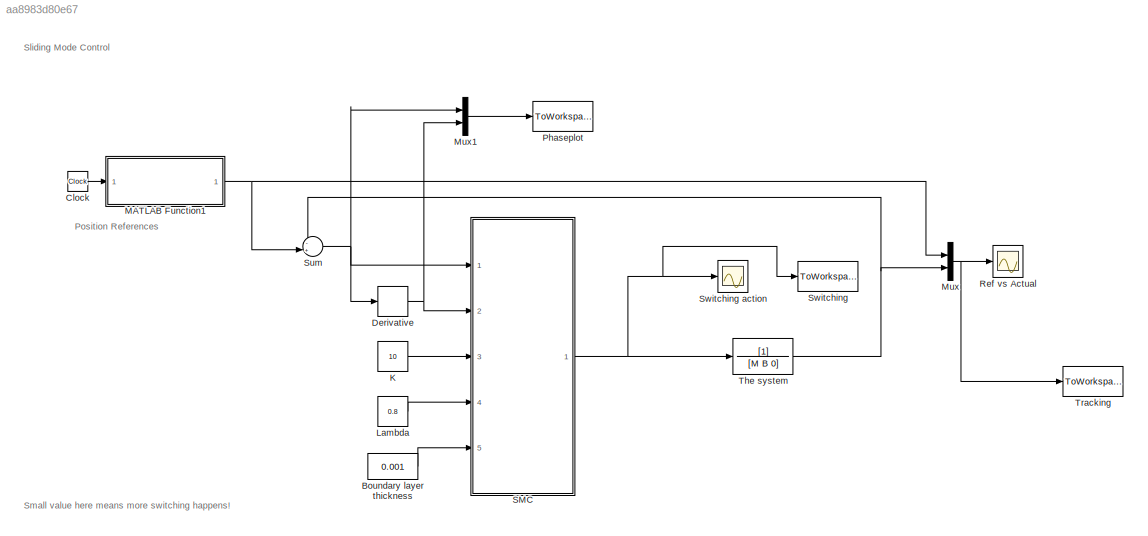
MODEL slx_aa8983d80e67
KIND model
CONFIG AbsTol = auto
CONFIG FixedStep = ts
CONFIG MaxStep = auto
CONFIG MinStep = auto
CONFIG RelTol = 1e-3
CONFIG SampleTimeConstraint = Unconstrained
CONFIG Solver = ode3
CONFIG SolverMode = Auto
CONFIG SolverName = ode3
CONFIG StartTime = 0.0
CONFIG StopTime = tsim
BLOCK [Constant] Boundary layer thickness
  Value = 0.001
BLOCK [Clock] Clock
BLOCK [Derivative] Derivative
BLOCK [Constant] K
  Value = 10
BLOCK [Constant] Lambda
  Value = 0.8
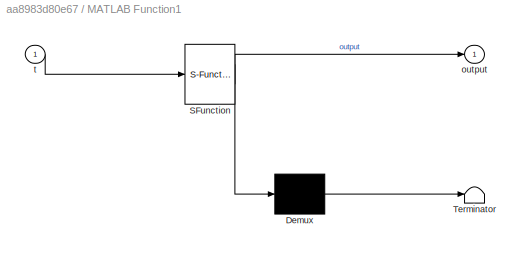
BLOCK [SubSystem] MATLAB Function1
  ErrorFcn = Stateflow.Translate.translate
  PermitHierarchicalResolution = ExplicitOnly
  Ports = [1, 1]
  RequestExecContextInheritance = off
  SFBlockType = MATLAB Function
  TreatAsAtomicUnit = on
BLOCK [Demux] MATLAB Function1/ Demux 
  Outputs = 1
  Ports = [1, 1]
BLOCK [S-Function] MATLAB Function1/ SFunction 
  EnableBusSupport = on
  FunctionName = sf_sfun
  PortCounts = [1 2]
  Ports = [1, 2]
  Tag = Stateflow S-Function smc_mass_1d 4
BLOCK [Terminator] MATLAB Function1/ Terminator 
BLOCK [Outport] MATLAB Function1/output
  IconDisplay = Port number
BLOCK [Inport] MATLAB Function1/t
  IconDisplay = Port number
BLOCK [Mux] Mux
  DisplayOption = bar
  Inputs = 2
  Ports = [2, 1]
BLOCK [Mux] Mux1
  DisplayOption = bar
  Inputs = 2
  Ports = [2, 1]
BLOCK [ToWorkspace] Phaseplot
  FixptAsFi = on
  MaxDataPoints = inf
  Ports = [1]
  SampleTime = -1
  Save2DSignal = 3-D array (concatenate along third dimension)
  VariableName = phaseplot
BLOCK [Scope] Ref vs Actual
  Floating = off
  LimitDataPoints = off
  NumInputPorts = 1
  Ports = [1]
  ShowLegends = off
  ZoomMode = yonly
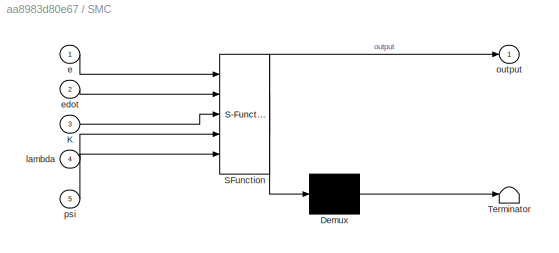
BLOCK [SubSystem] SMC
  ErrorFcn = Stateflow.Translate.translate
  PermitHierarchicalResolution = ExplicitOnly
  Ports = [5, 1]
  RequestExecContextInheritance = off
  SFBlockType = MATLAB Function
  TreatAsAtomicUnit = on
BLOCK [Demux] SMC/ Demux 
  Outputs = 1
  Ports = [1, 1]
BLOCK [S-Function] SMC/ SFunction 
  EnableBusSupport = on
  FunctionName = sf_sfun
  PortCounts = [5 2]
  Ports = [5, 2]
  Tag = Stateflow S-Function smc_mass_1d 2
BLOCK [Terminator] SMC/ Terminator 
BLOCK [Inport] SMC/K
  IconDisplay = Port number
  Port = 3
BLOCK [Inport] SMC/e
  IconDisplay = Port number
BLOCK [Inport] SMC/edot
  IconDisplay = Port number
  Port = 2
BLOCK [Inport] SMC/lambda
  IconDisplay = Port number
  Port = 4
BLOCK [Outport] SMC/output
  IconDisplay = Port number
BLOCK [Inport] SMC/psi
  IconDisplay = Port number
  Port = 5
BLOCK [Sum] Sum
  IconShape = round
  InputSameDT = off
  Inputs = -+|
  OutDataTypeStr = Inherit: Inherit via internal rule
  Ports = [2, 1]
  SaturateOnIntegerOverflow = off
BLOCK [ToWorkspace] Switching
  FixptAsFi = on
  MaxDataPoints = inf
  Ports = [1]
  SampleTime = -1
  Save2DSignal = 3-D array (concatenate along third dimension)
  VariableName = switching
BLOCK [Scope] Switching action
  Floating = off
  LimitDataPoints = off
  NumInputPorts = 1
  Ports = [1]
  SaveName = ScopeData1
  ShowLegends = off
  ZoomMode = yonly
BLOCK [TransferFcn] The system
  Denominator = [M B 0]
BLOCK [ToWorkspace] Tracking
  FixptAsFi = on
  MaxDataPoints = inf
  Ports = [1]
  SampleTime = -1
  Save2DSignal = 3-D array (concatenate along third dimension)
  VariableName = tracking
ANNOTATION (root): Small value here means more switching happens!
ANNOTATION (root): Sliding Mode Control
ANNOTATION (root): Position References
LINE Boundary layer thickness:1 -> SMC:5
LINE Clock:1 -> MATLAB Function1:1
NET Derivative:1 -> Mux1:2, SMC:2
LINE K:1 -> SMC:3
LINE Lambda:1 -> SMC:4
NET MATLAB Function1:1 -> Mux:1, Sum:2
LINE Mux1:1 -> Phaseplot:1
NET Mux:1 -> Ref vs Actual:1, Tracking:1
NET SMC:1 -> Switching action:1, Switching:1, The system:1
NET Sum:1 -> Derivative:1, Mux1:1, SMC:1
NET The system:1 -> Mux:2, Sum:1
note: NET lines group one-source signal fan-out (src -> all destinations, sorted); 1:1 wires keep LINE
CHART SMC states=1 transitions=1
  STATE_LABEL 'eML_blk_kernel()'
  STATE_LABEL 'SCRIPT:\nfunction output = smc(e, edot, K, lambda, psi)\n%#codegen\n\n    s = lambda * e + edot;\n        \n    if (abs(s) > psi)    \n        sat_s = sign(s);\n    else\n        sat_s = s/psi;\n    end\n    \n    output = -(edot - K * sat_s);\n\nend'
CHART MATLAB Function1 states=1 transitions=1
  STATE_LABEL 'eML_blk_kernel()'
  STATE_LABEL 'SCRIPT:\nfunction output = generate_input(t)\n%#codegen\n\n    output = -pi/2+52.5/180*pi*(1-cos(1.26*t));\nend'
